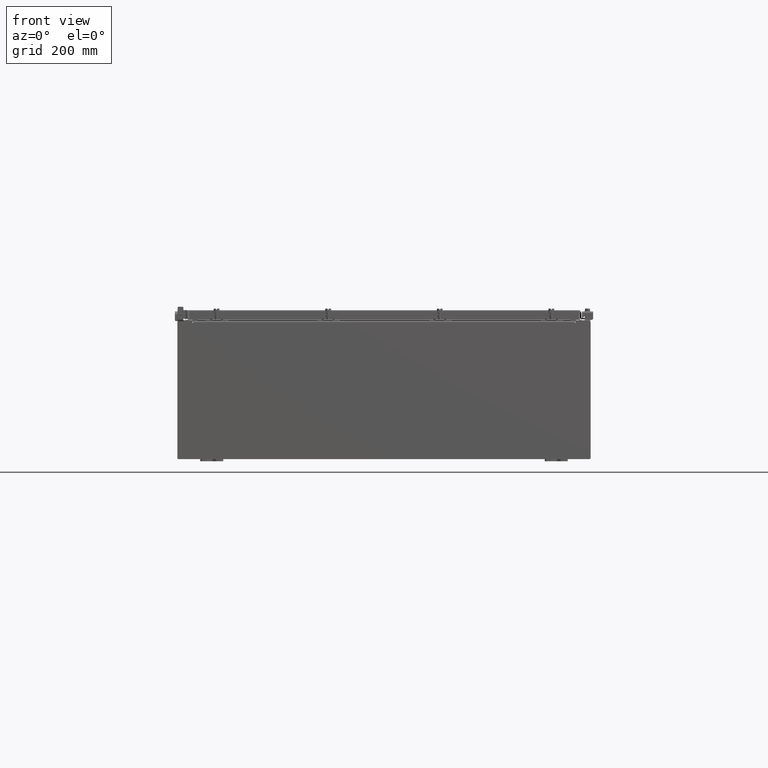
[diagram: clean part render]
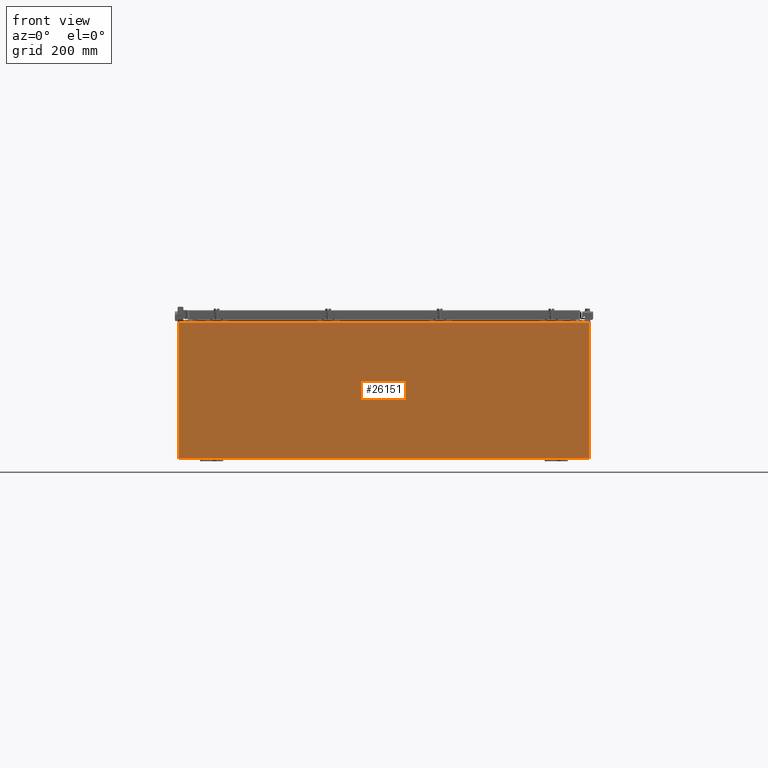
[diagram: same view with one face highlighted and labeled with its STEP entity id]
A machine part, front view. The second image highlights one B-rep face of the part: STEP entity #26151.
In plain terms, the highlighted planar face has unit normal (-0, 1, -0).
Its self-contained STEP definition (entity closure, byte-faithful):
#229 = CARTESIAN_POINT ( 'NONE',  ( -16.67455000000000000, 0.0000000000000000000, 5.874949999999999200 ) ) ;
#257 = EDGE_CURVE ( 'NONE', #2779, #7924, #22041, .T. ) ;
#572 = CARTESIAN_POINT ( 'NONE',  ( -17.92529999999999600, 0.0000000000000000000, -5.925300000000000000 ) ) ;
#657 = VERTEX_POINT ( 'NONE', #15904 ) ;
#763 = DIRECTION ( 'NONE',  ( 0.0000000000000000000, 0.0000000000000000000, -1.000000000000000000 ) ) ;
#825 = DIRECTION ( 'NONE',  ( 0.0000000000000000000, 0.0000000000000000000, 1.000000000000000000 ) ) ;
#1781 = CARTESIAN_POINT ( 'NONE',  ( 16.63720000000000400, 0.0000000000000000000, 5.874949999999999200 ) ) ;
#1915 = DIRECTION ( 'NONE',  ( 0.0000000000000000000, 0.0000000000000000000, 1.000000000000000000 ) ) ;
#2132 = VERTEX_POINT ( 'NONE', #7691 ) ;
#2133 = VECTOR ( 'NONE', #23419, 39.37007874015748100 ) ;
#2548 = LINE ( 'NONE', #572, #18690 ) ;
#2613 = LINE ( 'NONE', #23771, #13823 ) ;
#2779 = VERTEX_POINT ( 'NONE', #23936 ) ;
#2780 = LINE ( 'NONE', #6628, #2133 ) ;
#3726 = VERTEX_POINT ( 'NONE', #11901 ) ;
#4022 = ORIENTED_EDGE ( 'NONE', *, *, #19390, .F. ) ;
#4443 = FACE_OUTER_BOUND ( 'NONE', #16283, .T. ) ;
#4990 = CARTESIAN_POINT ( 'NONE',  ( -16.63720000000000000, 3.756290991288361700E-016, 5.912299999999999200 ) ) ;
#5128 = EDGE_CURVE ( 'NONE', #3726, #22234, #26802, .T. ) ;
#5153 = CARTESIAN_POINT ( 'NONE',  ( 16.63720000000000400, 0.0000000000000000000, 0.0000000000000000000 ) ) ;
#5290 = CARTESIAN_POINT ( 'NONE',  ( -16.63720000000000000, -0.0000000000000000000, 5.874949999999999200 ) ) ;
#5431 = DIRECTION ( 'NONE',  ( 0.0000000000000000000, -0.0000000000000000000, -1.000000000000000000 ) ) ;
#5766 = ORIENTED_EDGE ( 'NONE', *, *, #15537, .T. ) ;
#6628 = CARTESIAN_POINT ( 'NONE',  ( 16.67454999999949500, -0.0000000000000000000, -1.447541957108302900E-012 ) ) ;
#6772 = ORIENTED_EDGE ( 'NONE', *, *, #5128, .F. ) ;
#6975 = DIRECTION ( 'NONE',  ( -1.000000000000000000, -0.0000000000000000000, -0.0000000000000000000 ) ) ;
#7036 = ORIENTED_EDGE ( 'NONE', *, *, #257, .T. ) ;
#7128 = DIRECTION ( 'NONE',  ( 1.000000000000000000, 0.0000000000000000000, 0.0000000000000000000 ) ) ;
#7303 = CARTESIAN_POINT ( 'NONE',  ( 16.65587500000000500, 0.0000000000000000000, 5.874949999999999200 ) ) ;
#7691 = CARTESIAN_POINT ( 'NONE',  ( -16.63720000000000000, 3.756290991288361700E-016, 5.912299999999999200 ) ) ;
#7751 = CARTESIAN_POINT ( 'NONE',  ( -16.63720000000000000, -0.0000000000000000000, 0.0000000000000000000 ) ) ;
#7812 = VECTOR ( 'NONE', #825, 39.37007874015748100 ) ;
#7924 = VERTEX_POINT ( 'NONE', #26782 ) ;
#8802 = VECTOR ( 'NONE', #11638, 39.37007874015748100 ) ;
#8876 = CARTESIAN_POINT ( 'NONE',  ( 16.67455000000000700, 0.0000000000000000000, 5.925300000000000000 ) ) ;
#9386 = DIRECTION ( 'NONE',  ( 0.0000000000000000000, 0.0000000000000000000, -1.000000000000000000 ) ) ;
#9565 = EDGE_CURVE ( 'NONE', #21431, #2779, #14425, .T. ) ;
#9835 = CARTESIAN_POINT ( 'NONE',  ( -17.92529999999999600, 0.0000000000000000000, -5.925300000000000000 ) ) ;
#10131 = VERTEX_POINT ( 'NONE', #5290 ) ;
#10718 = LINE ( 'NONE', #12067, #20625 ) ;
#10959 = CARTESIAN_POINT ( 'NONE',  ( -17.92529999999999600, 0.0000000000000000000, 5.925299999999999100 ) ) ;
#11638 = DIRECTION ( 'NONE',  ( 1.000000000000000000, 0.0000000000000000000, 3.048036009064577000E-017 ) ) ;
#11645 = EDGE_CURVE ( 'NONE', #21431, #3726, #2780, .T. ) ;
#11809 = DIRECTION ( 'NONE',  ( 0.0000000000000000000, 0.0000000000000000000, -1.000000000000000000 ) ) ;
#11901 = CARTESIAN_POINT ( 'NONE',  ( 16.67455000000000400, 0.0000000000000000000, 5.874949999999999200 ) ) ;
#12067 = CARTESIAN_POINT ( 'NONE',  ( -17.92529999999999600, 0.0000000000000000000, 5.925299999999999100 ) ) ;
#12232 = ORIENTED_EDGE ( 'NONE', *, *, #25281, .T. ) ;
#12279 = VECTOR ( 'NONE', #1915, 39.37007874015748100 ) ;
#12403 = EDGE_CURVE ( 'NONE', #10131, #24455, #27174, .T. ) ;
#13102 = CARTESIAN_POINT ( 'NONE',  ( 17.92530000000000400, 0.0000000000000000000, 5.925300000000000000 ) ) ;
#13234 = VERTEX_POINT ( 'NONE', #9835 ) ;
#13367 = ORIENTED_EDGE ( 'NONE', *, *, #18385, .T. ) ;
#13372 = DIRECTION ( 'NONE',  ( -0.0000000000000000000, 1.000000000000000000, -0.0000000000000000000 ) ) ;
#13393 = LINE ( 'NONE', #5153, #7812 ) ;
#13561 = VERTEX_POINT ( 'NONE', #24844 ) ;
#13619 = EDGE_CURVE ( 'NONE', #24455, #13561, #24116, .T. ) ;
#13823 = VECTOR ( 'NONE', #19610, 39.37007874015748100 ) ;
#14193 = DIRECTION ( 'NONE',  ( 1.000000000000000000, 0.0000000000000000000, 3.048036009064577000E-017 ) ) ;
#14425 = LINE ( 'NONE', #19997, #8802 ) ;
#14545 = VERTEX_POINT ( 'NONE', #10959 ) ;
#15044 = LINE ( 'NONE', #7751, #26203 ) ;
#15125 = AXIS2_PLACEMENT_3D ( 'NONE', #25956, #13372, #763 ) ;
#15537 = EDGE_CURVE ( 'NONE', #13234, #14545, #2613, .T. ) ;
#15904 = CARTESIAN_POINT ( 'NONE',  ( 16.63720000000000400, 0.0000000000000000000, 5.912299999999999200 ) ) ;
#16040 = LINE ( 'NONE', #4990, #20977 ) ;
#16283 = EDGE_LOOP ( 'NONE', ( #16816, #23113, #4022, #12232, #18731, #6772, #19896, #25962, #7036, #13367, #5766, #16519 ) ) ;
#16519 = ORIENTED_EDGE ( 'NONE', *, *, #25592, .T. ) ;
#16658 = CARTESIAN_POINT ( 'NONE',  ( -16.67455000000000000, -0.0000000000000000000, 0.0000000000000000000 ) ) ;
#16816 = ORIENTED_EDGE ( 'NONE', *, *, #13619, .F. ) ;
#18020 = DIRECTION ( 'NONE',  ( 0.0000000000000000000, -1.000000000000000000, 0.0000000000000000000 ) ) ;
#18385 = EDGE_CURVE ( 'NONE', #7924, #13234, #2548, .T. ) ;
#18690 = VECTOR ( 'NONE', #6975, 39.37007874015748100 ) ;
#18731 = ORIENTED_EDGE ( 'NONE', *, *, #19216, .F. ) ;
#19216 = EDGE_CURVE ( 'NONE', #22234, #657, #13393, .T. ) ;
#19390 = EDGE_CURVE ( 'NONE', #2132, #10131, #15044, .T. ) ;
#19610 = DIRECTION ( 'NONE',  ( -0.0000000000000000000, -0.0000000000000000000, 1.000000000000000000 ) ) ;
#19896 = ORIENTED_EDGE ( 'NONE', *, *, #11645, .F. ) ;
#19997 = CARTESIAN_POINT ( 'NONE',  ( -17.92529999999999600, 0.0000000000000000000, 5.925299999999999100 ) ) ;
#20330 = DIRECTION ( 'NONE',  ( 0.0000000000000000000, 0.0000000000000000000, -1.000000000000000000 ) ) ;
#20625 = VECTOR ( 'NONE', #14193, 39.37007874015748100 ) ;
#20977 = VECTOR ( 'NONE', #7128, 39.37007874015748100 ) ;
#21431 = VERTEX_POINT ( 'NONE', #8876 ) ;
#21441 = AXIS2_PLACEMENT_3D ( 'NONE', #7303, #22005, #9386 ) ;
#22005 = DIRECTION ( 'NONE',  ( -0.0000000000000000000, 1.000000000000000000, -0.0000000000000000000 ) ) ;
#22020 = AXIS2_PLACEMENT_3D ( 'NONE', #24272, #18020, #5431 ) ;
#22041 = LINE ( 'NONE', #13102, #26997 ) ;
#22234 = VERTEX_POINT ( 'NONE', #1781 ) ;
#23113 = ORIENTED_EDGE ( 'NONE', *, *, #12403, .F. ) ;
#23419 = DIRECTION ( 'NONE',  ( -8.681145560799821800E-014, 0.0000000000000000000, -1.000000000000000000 ) ) ;
#23771 = CARTESIAN_POINT ( 'NONE',  ( -17.92529999999999600, 0.0000000000000000000, 5.925299999999999100 ) ) ;
#23936 = CARTESIAN_POINT ( 'NONE',  ( 17.92530000000000400, 0.0000000000000000000, 5.925300000000000000 ) ) ;
#24116 = LINE ( 'NONE', #16658, #12279 ) ;
#24272 = CARTESIAN_POINT ( 'NONE',  ( 0.0000000000000000000, 0.0000000000000000000, 0.0000000000000000000 ) ) ;
#24455 = VERTEX_POINT ( 'NONE', #229 ) ;
#24844 = CARTESIAN_POINT ( 'NONE',  ( -16.67455000000000000, 0.0000000000000000000, 5.925299999999999100 ) ) ;
#25281 = EDGE_CURVE ( 'NONE', #2132, #657, #16040, .T. ) ;
#25592 = EDGE_CURVE ( 'NONE', #14545, #13561, #10718, .T. ) ;
#25956 = CARTESIAN_POINT ( 'NONE',  ( -16.65587499999999800, 0.0000000000000000000, 5.874949999999999200 ) ) ;
#25962 = ORIENTED_EDGE ( 'NONE', *, *, #9565, .T. ) ;
#26151 = ADVANCED_FACE ( 'NONE', ( #4443 ), #26380, .F. ) ;
#26203 = VECTOR ( 'NONE', #20330, 39.37007874015748100 ) ;
#26380 = PLANE ( 'NONE',  #22020 ) ;
#26782 = CARTESIAN_POINT ( 'NONE',  ( 17.92530000000000400, 0.0000000000000000000, -5.925300000000000000 ) ) ;
#26802 = CIRCLE ( 'NONE', #21441, 0.01867499999999949400 ) ;
#26997 = VECTOR ( 'NONE', #11809, 39.37007874015748100 ) ;
#27174 = CIRCLE ( 'NONE', #15125, 0.01867499999999949400 ) ;